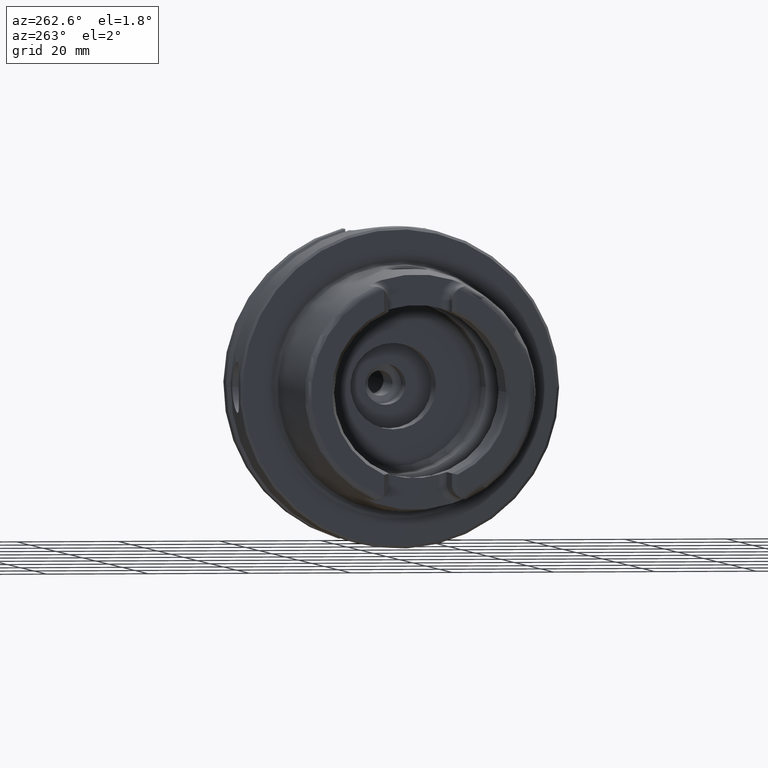
[diagram: clean part render]
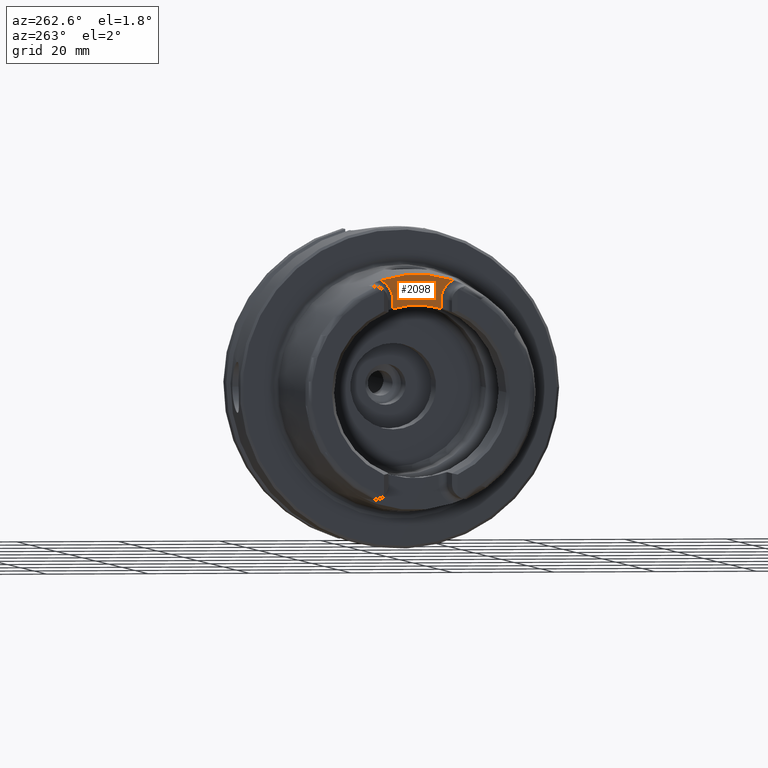
[diagram: same view with one face highlighted and labeled with its STEP entity id]
A machine part, auxiliary view. The second image highlights one B-rep face of the part: STEP entity #2098.
In plain terms, the highlighted planar face has unit normal (-1, 0, 0).
Its self-contained STEP definition (entity closure, byte-faithful):
#136=PLANE('',#2346);
#310=FACE_OUTER_BOUND('',#440,.T.);
#440=EDGE_LOOP('',(#1860,#1861,#1862,#1863,#1864,#1865));
#564=LINE('',#4341,#674);
#565=LINE('',#4370,#675);
#674=VECTOR('',#2850,10.);
#675=VECTOR('',#2863,10.);
#728=CIRCLE('',#2226,23.0180260521042);
#773=CIRCLE('',#2322,4.38);
#775=CIRCLE('',#2325,4.38);
#785=CIRCLE('',#2347,17.);
#902=VERTEX_POINT('',#3532);
#903=VERTEX_POINT('',#3547);
#996=VERTEX_POINT('',#4338);
#997=VERTEX_POINT('',#4340);
#998=VERTEX_POINT('',#4355);
#999=VERTEX_POINT('',#4359);
#1135=EDGE_CURVE('',#902,#903,#728,.T.);
#1282=EDGE_CURVE('',#996,#997,#564,.T.);
#1284=EDGE_CURVE('',#903,#996,#773,.T.);
#1286=EDGE_CURVE('',#998,#902,#775,.T.);
#1288=EDGE_CURVE('',#999,#998,#565,.T.);
#1304=EDGE_CURVE('',#997,#999,#785,.T.);
#1860=ORIENTED_EDGE('',*,*,#1284,.F.);
#1861=ORIENTED_EDGE('',*,*,#1135,.F.);
#1862=ORIENTED_EDGE('',*,*,#1286,.F.);
#1863=ORIENTED_EDGE('',*,*,#1288,.F.);
#1864=ORIENTED_EDGE('',*,*,#1304,.F.);
#1865=ORIENTED_EDGE('',*,*,#1282,.F.);
#2098=ADVANCED_FACE('',(#310),#136,.T.);
#2226=AXIS2_PLACEMENT_3D('',#3548,#2608,#2609);
#2322=AXIS2_PLACEMENT_3D('',#4353,#2853,#2854);
#2325=AXIS2_PLACEMENT_3D('',#4357,#2859,#2860);
#2346=AXIS2_PLACEMENT_3D('',#4418,#2906,#2907);
#2347=AXIS2_PLACEMENT_3D('',#4419,#2908,#2909);
#2608=DIRECTION('center_axis',(1.,0.,0.));
#2609=DIRECTION('ref_axis',(0.,1.,0.));
#2850=DIRECTION('',(0.,-1.58830189502884E-16,-1.));
#2853=DIRECTION('center_axis',(-1.,0.,0.));
#2854=DIRECTION('ref_axis',(0.,0.601141749549969,0.799142413433302));
#2859=DIRECTION('center_axis',(-1.,0.,0.));
#2860=DIRECTION('ref_axis',(0.,-0.601141749549969,0.799142413433301));
#2863=DIRECTION('',(0.,-1.58830189502884E-16,1.));
#2906=DIRECTION('center_axis',(-1.,0.,0.));
#2907=DIRECTION('ref_axis',(0.,0.,1.));
#2908=DIRECTION('center_axis',(-1.,0.,0.));
#2909=DIRECTION('ref_axis',(0.,1.,0.));
#3532=CARTESIAN_POINT('',(-26.,7.14127219004964,21.8822246319466));
#3547=CARTESIAN_POINT('',(-26.,-7.14127219004964,21.8822246319466));
#3548=CARTESIAN_POINT('Origin',(-26.,0.,0.));
#4338=CARTESIAN_POINT('',(-26.,-4.77,17.99));
#4340=CARTESIAN_POINT('',(-26.,-4.77,16.3170800083839));
#4341=CARTESIAN_POINT('',(-26.,-4.77,14.75));
#4353=CARTESIAN_POINT('Origin',(-26.,-9.15,17.99));
#4355=CARTESIAN_POINT('',(-26.,4.77,17.99));
#4357=CARTESIAN_POINT('Origin',(-26.,9.15,17.99));
#4359=CARTESIAN_POINT('',(-26.,4.77,16.3170800083839));
#4370=CARTESIAN_POINT('',(-26.,4.77,18.245));
#4418=CARTESIAN_POINT('Origin',(-26.,-2.22044604925031E-15,18.5));
#4419=CARTESIAN_POINT('Origin',(-26.,0.,0.));